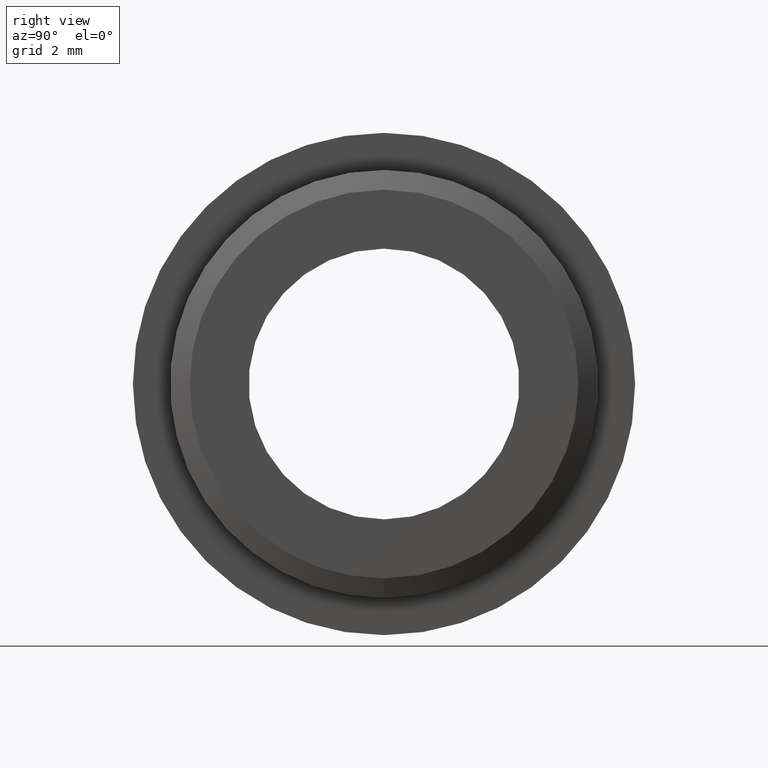
[diagram: clean part render]
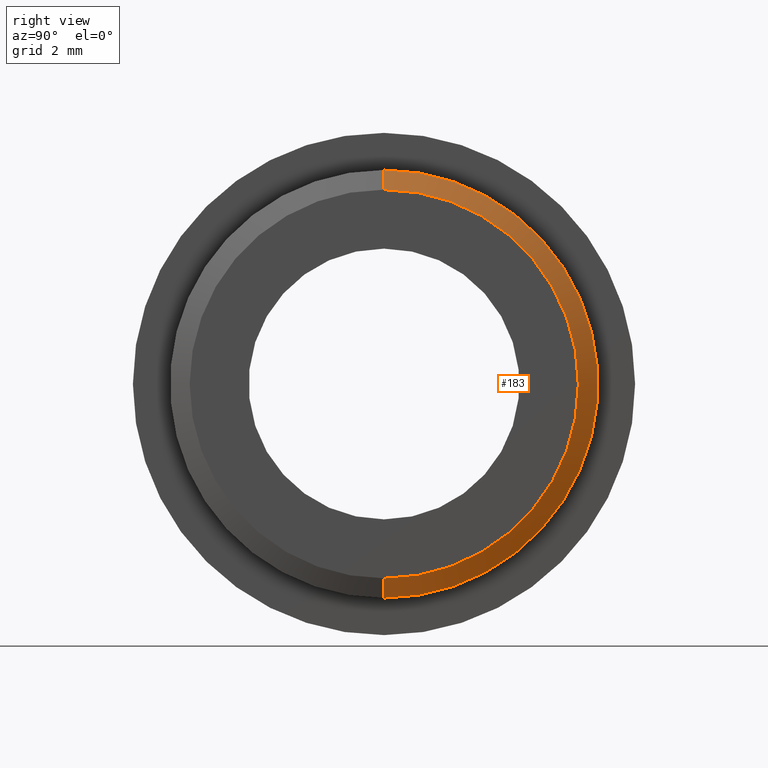
[diagram: same view with one face highlighted and labeled with its STEP entity id]
A machine part, right view. The second image highlights one B-rep face of the part: STEP entity #183.
In plain terms, the highlighted conical surface has half-angle 66.038 deg.
Its self-contained STEP definition (entity closure, byte-faithful):
#2 = VERTEX_POINT ( 'NONE', #193 ) ;
#51 = CARTESIAN_POINT ( 'NONE',  ( 3.000000000000002700, 5.449678256205721800E-016, -4.450000000000000200 ) ) ;
#75 = EDGE_CURVE ( 'NONE', #82, #178, #429, .T. ) ;
#82 = VERTEX_POINT ( 'NONE', #404 ) ;
#87 = DIRECTION ( 'NONE',  ( -1.000000000000000000, -0.0000000000000000000, -0.0000000000000000000 ) ) ;
#136 = CONICAL_SURFACE ( 'NONE', #579, 4.450000000000000200, 1.152571997215657400 ) ;
#155 = CIRCLE ( 'NONE', #645, 4.450000000000000200 ) ;
#178 = VERTEX_POINT ( 'NONE', #488 ) ;
#183 = ADVANCED_FACE ( 'NONE', ( #599 ), #136, .T. ) ;
#190 = EDGE_CURVE ( 'NONE', #82, #2, #155, .T. ) ;
#193 = CARTESIAN_POINT ( 'NONE',  ( 3.000000000000002700, 5.725223786013876300E-016, -4.450000000000000200 ) ) ;
#194 = EDGE_CURVE ( 'NONE', #178, #552, #725, .T. ) ;
#210 = CARTESIAN_POINT ( 'NONE',  ( 2.799999999999997200, 6.000769315822031700E-016, -4.900000000000000400 ) ) ;
#238 = EDGE_LOOP ( 'NONE', ( #381, #528, #597, #277 ) ) ;
#256 = DIRECTION ( 'NONE',  ( -0.4061384660534569400, 0.0000000000000000000, 0.9138115486202530400 ) ) ;
#262 = EDGE_CURVE ( 'NONE', #2, #552, #479, .T. ) ;
#266 = VECTOR ( 'NONE', #256, 1000.000000000000000 ) ;
#277 = ORIENTED_EDGE ( 'NONE', *, *, #75, .F. ) ;
#279 = DIRECTION ( 'NONE',  ( -1.000000000000000000, -0.0000000000000000000, -0.0000000000000000000 ) ) ;
#282 = DIRECTION ( 'NONE',  ( -1.000000000000000000, -0.0000000000000000000, -0.0000000000000000000 ) ) ;
#323 = CARTESIAN_POINT ( 'NONE',  ( 3.000000000000002700, 0.0000000000000000000, 0.0000000000000000000 ) ) ;
#329 = VECTOR ( 'NONE', #461, 1000.000000000000000 ) ;
#381 = ORIENTED_EDGE ( 'NONE', *, *, #190, .T. ) ;
#404 = CARTESIAN_POINT ( 'NONE',  ( 3.000000000000002700, 0.0000000000000000000, 4.450000000000000200 ) ) ;
#429 = LINE ( 'NONE', #589, #266 ) ;
#461 = DIRECTION ( 'NONE',  ( -0.4061384660534569400, 1.119096388041678900E-016, -0.9138115486202530400 ) ) ;
#479 = LINE ( 'NONE', #51, #329 ) ;
#487 = DIRECTION ( 'NONE',  ( 0.0000000000000000000, 0.0000000000000000000, 1.000000000000000000 ) ) ;
#488 = CARTESIAN_POINT ( 'NONE',  ( 2.799999999999997200, 0.0000000000000000000, 4.900000000000000400 ) ) ;
#528 = ORIENTED_EDGE ( 'NONE', *, *, #262, .T. ) ;
#552 = VERTEX_POINT ( 'NONE', #210 ) ;
#579 = AXIS2_PLACEMENT_3D ( 'NONE', #323, #87, #487 ) ;
#589 = CARTESIAN_POINT ( 'NONE',  ( 3.000000000000002700, 0.0000000000000000000, 4.450000000000000200 ) ) ;
#597 = ORIENTED_EDGE ( 'NONE', *, *, #194, .F. ) ;
#599 = FACE_OUTER_BOUND ( 'NONE', #238, .T. ) ;
#613 = CARTESIAN_POINT ( 'NONE',  ( 2.799999999999997200, 0.0000000000000000000, 0.0000000000000000000 ) ) ;
#620 = CARTESIAN_POINT ( 'NONE',  ( 3.000000000000002700, 0.0000000000000000000, 0.0000000000000000000 ) ) ;
#645 = AXIS2_PLACEMENT_3D ( 'NONE', #620, #282, #663 ) ;
#659 = DIRECTION ( 'NONE',  ( 0.0000000000000000000, 0.0000000000000000000, 1.000000000000000000 ) ) ;
#663 = DIRECTION ( 'NONE',  ( 0.0000000000000000000, 0.0000000000000000000, 1.000000000000000000 ) ) ;
#686 = AXIS2_PLACEMENT_3D ( 'NONE', #613, #279, #659 ) ;
#725 = CIRCLE ( 'NONE', #686, 4.900000000000000400 ) ;